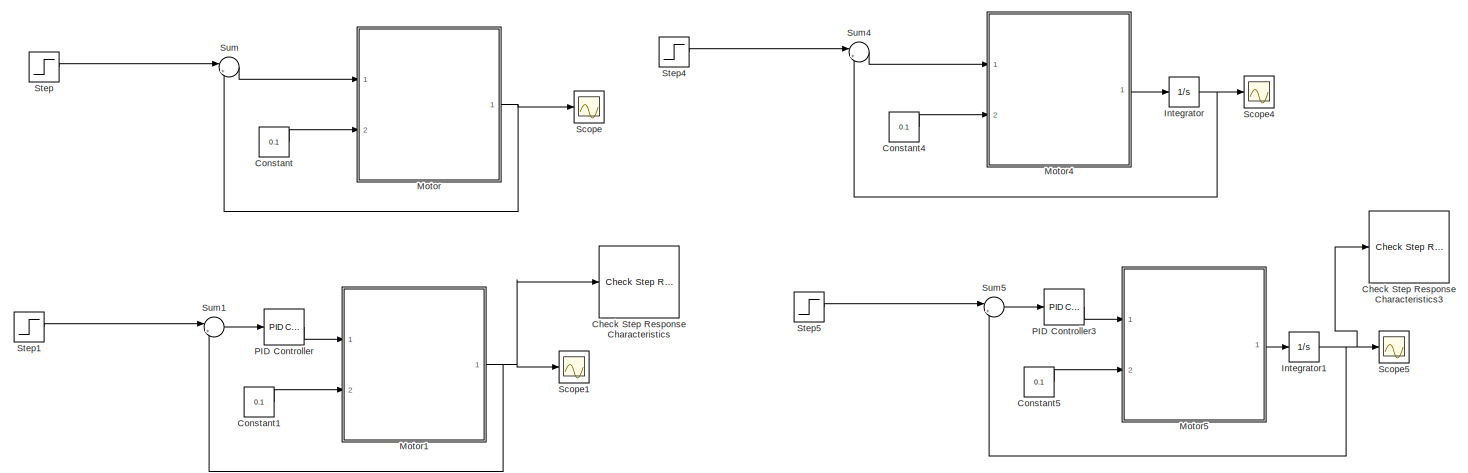
[diagram: root canvas - part 1/3, full width, top band]
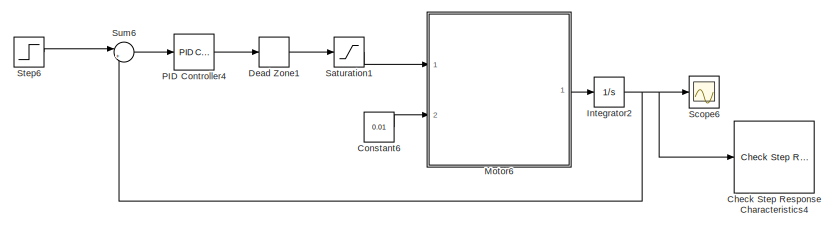
[diagram: root canvas - part 2/3, middle right region]
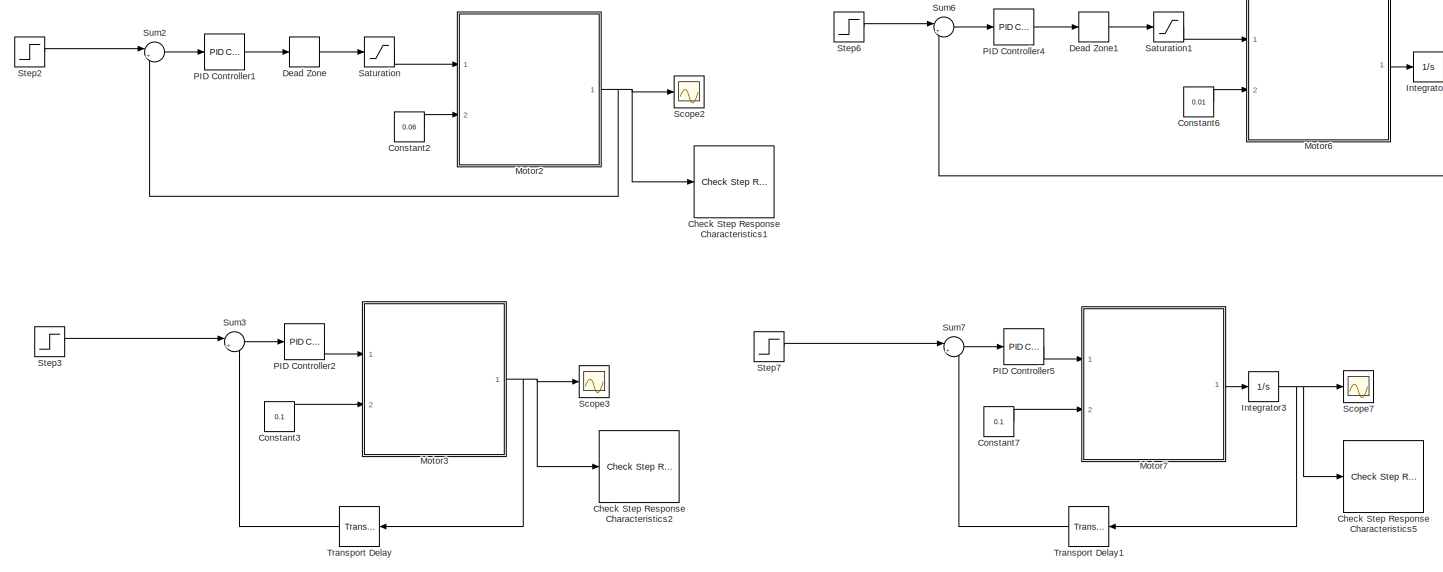
[diagram: root canvas - part 3/3, full width, bottom band]
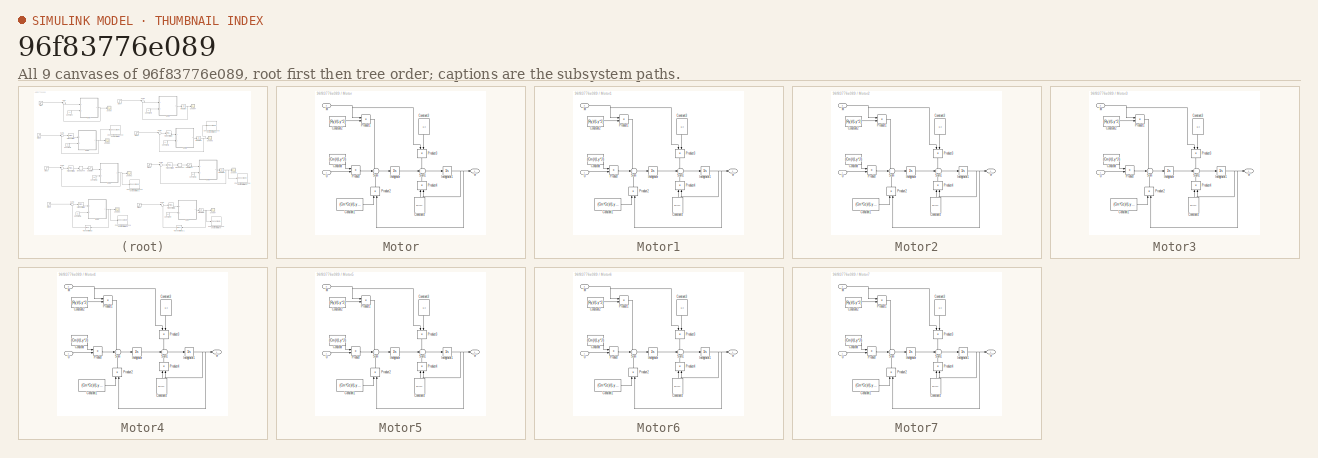
[diagram: thumbnail index - all 9 canvases of the model, root first then tree order]
MODEL slx_96f83776e089
KIND model
CONFIG AbsTol = auto
CONFIG EnableMultiTasking = off
CONFIG FixedStep = auto
CONFIG MaxStep = auto
CONFIG MinStep = auto
CONFIG RelTol = 1e-5
CONFIG SampleTimeConstraint = Unconstrained
CONFIG SolverName = ode23
CONFIG StartTime = 0.0
CONFIG StopTime = 1
BLOCK [Reference] Check Step Response Characteristics  REF=checkpacklib/Check Step Response 
Characteristics
  Commented = on
  InstantiateOnLoad = on
  Ports = [1]
  SourceBlock = checkpacklib/Check Step Response \nCharacteristics
  SourceProductBaseCode = CT,ID,MT,SO
  SourceType = Checks_StepResponse
BLOCK [Reference] Check Step Response Characteristics1  REF=checkpacklib/Check Step Response 
Characteristics
  Commented = on
  InstantiateOnLoad = on
  Ports = [1]
  SourceBlock = checkpacklib/Check Step Response \nCharacteristics
  SourceProductBaseCode = CT,ID,MT,SO
  SourceType = Checks_StepResponse
BLOCK [Reference] Check Step Response Characteristics2  REF=checkpacklib/Check Step Response 
Characteristics
  Commented = on
  InstantiateOnLoad = on
  Ports = [1]
  SourceBlock = checkpacklib/Check Step Response \nCharacteristics
  SourceProductBaseCode = CT,ID,MT,SO
  SourceType = Checks_StepResponse
BLOCK [Reference] Check Step Response Characteristics3  REF=checkpacklib/Check Step Response 
Characteristics
  InstantiateOnLoad = on
  Ports = [1]
  SourceBlock = checkpacklib/Check Step Response \nCharacteristics
  SourceProductBaseCode = CT,ID,MT,SO
  SourceType = Checks_StepResponse
BLOCK [Reference] Check Step Response Characteristics4  REF=checkpacklib/Check Step Response 
Characteristics
  Commented = on
  InstantiateOnLoad = on
  Ports = [1]
  SourceBlock = checkpacklib/Check Step Response \nCharacteristics
  SourceProductBaseCode = CT,ID,MT,SO
  SourceType = Checks_StepResponse
BLOCK [Reference] Check Step Response Characteristics5  REF=checkpacklib/Check Step Response 
Characteristics
  Commented = on
  InstantiateOnLoad = on
  Ports = [1]
  SourceBlock = checkpacklib/Check Step Response \nCharacteristics
  SourceProductBaseCode = CT,ID,MT,SO
  SourceType = Checks_StepResponse
BLOCK [Constant] Constant
  Commented = on
  Value = 0.1
BLOCK [Constant] Constant1
  Commented = on
  Value = 0.1
BLOCK [Constant] Constant2
  Commented = on
  Value = 0.06
BLOCK [Constant] Constant3
  Commented = on
  Value = 0.1
BLOCK [Constant] Constant4
  Commented = on
  Value = 0.1
BLOCK [Constant] Constant5
  Value = 0.1
BLOCK [Constant] Constant6
  Commented = on
  Value = 0.01
BLOCK [Constant] Constant7
  Commented = on
  Value = 0.1
BLOCK [DeadZone] Dead Zone
  Commented = on
  LowerValue = -0.8
  UpperValue = 0.8
BLOCK [DeadZone] Dead Zone1
  Commented = on
  LowerValue = -0.8
  UpperValue = 0.8
BLOCK [Integrator] Integrator
  Commented = on
  Ports = [1, 1]
BLOCK [Integrator] Integrator1
  Ports = [1, 1]
BLOCK [Integrator] Integrator2
  Commented = on
  Ports = [1, 1]
BLOCK [Integrator] Integrator3
  Commented = on
  Ports = [1, 1]
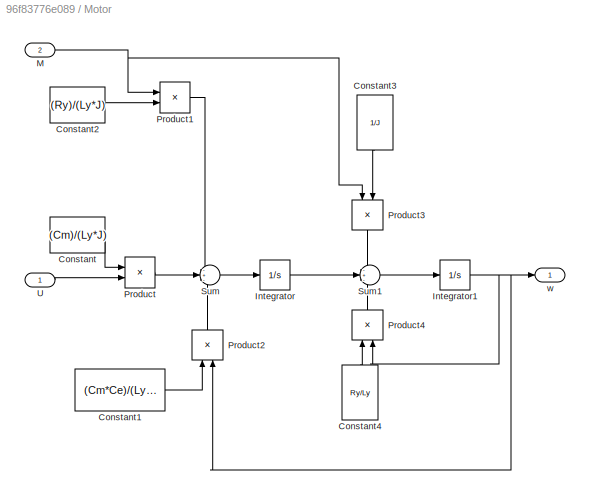
BLOCK [SubSystem] Motor
  Commented = on
  Ports = [2, 1]
  RequestExecContextInheritance = off
BLOCK [Constant] Motor/Constant
  Value = (Cm)/(Ly*J)
BLOCK [Constant] Motor/Constant1
  Value = (Cm*Ce)/(Ly*J)
BLOCK [Constant] Motor/Constant2
  Value = (Ry)/(Ly*J)
BLOCK [Constant] Motor/Constant3
  NameLocation = left
  Value = 1/J
BLOCK [Constant] Motor/Constant4
  NameLocation = right
  Value = Ry/Ly
BLOCK [Integrator] Motor/Integrator
  Ports = [1, 1]
BLOCK [Integrator] Motor/Integrator1
  Ports = [1, 1]
BLOCK [Inport] Motor/M
  Port = 2
BLOCK [Product] Motor/Product
  Ports = [2, 1]
BLOCK [Product] Motor/Product1
  Ports = [2, 1]
BLOCK [Product] Motor/Product2
  NameLocation = right
  Ports = [2, 1]
BLOCK [Product] Motor/Product3
  NameLocation = left
  Ports = [2, 1]
BLOCK [Product] Motor/Product4
  NameLocation = right
  Ports = [2, 1]
BLOCK [Sum] Motor/Sum
  Inputs = -+-
  Ports = [3, 1]
BLOCK [Sum] Motor/Sum1
  Inputs = -+-
  Ports = [3, 1]
BLOCK [Inport] Motor/U
BLOCK [Outport] Motor/w
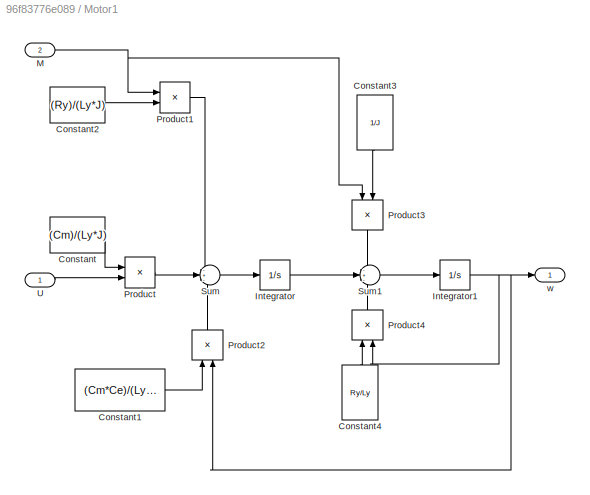
BLOCK [SubSystem] Motor1
  Commented = on
  Ports = [2, 1]
  RequestExecContextInheritance = off
BLOCK [Constant] Motor1/Constant
  Value = (Cm)/(Ly*J)
BLOCK [Constant] Motor1/Constant1
  Value = (Cm*Ce)/(Ly*J)
BLOCK [Constant] Motor1/Constant2
  Value = (Ry)/(Ly*J)
BLOCK [Constant] Motor1/Constant3
  NameLocation = left
  Value = 1/J
BLOCK [Constant] Motor1/Constant4
  NameLocation = right
  Value = Ry/Ly
BLOCK [Integrator] Motor1/Integrator
  Ports = [1, 1]
BLOCK [Integrator] Motor1/Integrator1
  Ports = [1, 1]
BLOCK [Inport] Motor1/M
  Port = 2
BLOCK [Product] Motor1/Product
  Ports = [2, 1]
BLOCK [Product] Motor1/Product1
  Ports = [2, 1]
BLOCK [Product] Motor1/Product2
  NameLocation = right
  Ports = [2, 1]
BLOCK [Product] Motor1/Product3
  NameLocation = left
  Ports = [2, 1]
BLOCK [Product] Motor1/Product4
  NameLocation = right
  Ports = [2, 1]
BLOCK [Sum] Motor1/Sum
  Inputs = -+-
  Ports = [3, 1]
BLOCK [Sum] Motor1/Sum1
  Inputs = -+-
  Ports = [3, 1]
BLOCK [Inport] Motor1/U
BLOCK [Outport] Motor1/w
BLOCK [SubSystem] Motor2
  Commented = on
  Ports = [2, 1]
  RequestExecContextInheritance = off
BLOCK [Constant] Motor2/Constant
  Value = (Cm)/(Ly*J)
BLOCK [Constant] Motor2/Constant1
  Value = (Cm*Ce)/(Ly*J)
BLOCK [Constant] Motor2/Constant2
  Value = (Ry)/(Ly*J)
BLOCK [Constant] Motor2/Constant3
  NameLocation = left
  Value = 1/J
BLOCK [Constant] Motor2/Constant4
  NameLocation = right
  Value = Ry/Ly
BLOCK [Integrator] Motor2/Integrator
  Ports = [1, 1]
BLOCK [Integrator] Motor2/Integrator1
  Ports = [1, 1]
BLOCK [Inport] Motor2/M
  Port = 2
BLOCK [Product] Motor2/Product
  Ports = [2, 1]
BLOCK [Product] Motor2/Product1
  Ports = [2, 1]
BLOCK [Product] Motor2/Product2
  NameLocation = right
  Ports = [2, 1]
BLOCK [Product] Motor2/Product3
  NameLocation = left
  Ports = [2, 1]
BLOCK [Product] Motor2/Product4
  NameLocation = right
  Ports = [2, 1]
BLOCK [Sum] Motor2/Sum
  Inputs = -+-
  Ports = [3, 1]
BLOCK [Sum] Motor2/Sum1
  Inputs = -+-
  Ports = [3, 1]
BLOCK [Inport] Motor2/U
BLOCK [Outport] Motor2/w
BLOCK [SubSystem] Motor3
  Commented = on
  Ports = [2, 1]
  RequestExecContextInheritance = off
BLOCK [Constant] Motor3/Constant
  Value = (Cm)/(Ly*J)
BLOCK [Constant] Motor3/Constant1
  Value = (Cm*Ce)/(Ly*J)
BLOCK [Constant] Motor3/Constant2
  Value = (Ry)/(Ly*J)
BLOCK [Constant] Motor3/Constant3
  NameLocation = left
  Value = 1/J
BLOCK [Constant] Motor3/Constant4
  NameLocation = right
  Value = Ry/Ly
BLOCK [Integrator] Motor3/Integrator
  Ports = [1, 1]
BLOCK [Integrator] Motor3/Integrator1
  Ports = [1, 1]
BLOCK [Inport] Motor3/M
  Port = 2
BLOCK [Product] Motor3/Product
  Ports = [2, 1]
BLOCK [Product] Motor3/Product1
  Ports = [2, 1]
BLOCK [Product] Motor3/Product2
  NameLocation = right
  Ports = [2, 1]
BLOCK [Product] Motor3/Product3
  NameLocation = left
  Ports = [2, 1]
BLOCK [Product] Motor3/Product4
  NameLocation = right
  Ports = [2, 1]
BLOCK [Sum] Motor3/Sum
  Inputs = -+-
  Ports = [3, 1]
BLOCK [Sum] Motor3/Sum1
  Inputs = -+-
  Ports = [3, 1]
BLOCK [Inport] Motor3/U
BLOCK [Outport] Motor3/w
BLOCK [SubSystem] Motor4
  Commented = on
  Ports = [2, 1]
  RequestExecContextInheritance = off
BLOCK [Constant] Motor4/Constant
  Value = (Cm)/(Ly*J)
BLOCK [Constant] Motor4/Constant1
  Value = (Cm*Ce)/(Ly*J)
BLOCK [Constant] Motor4/Constant2
  Value = (Ry)/(Ly*J)
BLOCK [Constant] Motor4/Constant3
  NameLocation = left
  Value = 1/J
BLOCK [Constant] Motor4/Constant4
  NameLocation = right
  Value = Ry/Ly
BLOCK [Integrator] Motor4/Integrator
  Ports = [1, 1]
BLOCK [Integrator] Motor4/Integrator1
  Ports = [1, 1]
BLOCK [Inport] Motor4/M
  Port = 2
BLOCK [Product] Motor4/Product
  Ports = [2, 1]
BLOCK [Product] Motor4/Product1
  Ports = [2, 1]
BLOCK [Product] Motor4/Product2
  NameLocation = right
  Ports = [2, 1]
BLOCK [Product] Motor4/Product3
  NameLocation = left
  Ports = [2, 1]
BLOCK [Product] Motor4/Product4
  NameLocation = right
  Ports = [2, 1]
BLOCK [Sum] Motor4/Sum
  Inputs = -+-
  Ports = [3, 1]
BLOCK [Sum] Motor4/Sum1
  Inputs = -+-
  Ports = [3, 1]
BLOCK [Inport] Motor4/U
BLOCK [Outport] Motor4/w
BLOCK [SubSystem] Motor5
  Ports = [2, 1]
  RequestExecContextInheritance = off
BLOCK [Constant] Motor5/Constant
  Value = (Cm)/(Ly*J)
BLOCK [Constant] Motor5/Constant1
  Value = (Cm*Ce)/(Ly*J)
BLOCK [Constant] Motor5/Constant2
  Value = (Ry)/(Ly*J)
BLOCK [Constant] Motor5/Constant3
  NameLocation = left
  Value = 1/J
BLOCK [Constant] Motor5/Constant4
  NameLocation = right
  Value = Ry/Ly
BLOCK [Integrator] Motor5/Integrator
  Ports = [1, 1]
BLOCK [Integrator] Motor5/Integrator1
  Ports = [1, 1]
BLOCK [Inport] Motor5/M
  Port = 2
BLOCK [Product] Motor5/Product
  Ports = [2, 1]
BLOCK [Product] Motor5/Product1
  Ports = [2, 1]
BLOCK [Product] Motor5/Product2
  NameLocation = right
  Ports = [2, 1]
BLOCK [Product] Motor5/Product3
  NameLocation = left
  Ports = [2, 1]
BLOCK [Product] Motor5/Product4
  NameLocation = right
  Ports = [2, 1]
BLOCK [Sum] Motor5/Sum
  Inputs = -+-
  Ports = [3, 1]
BLOCK [Sum] Motor5/Sum1
  Inputs = -+-
  Ports = [3, 1]
BLOCK [Inport] Motor5/U
BLOCK [Outport] Motor5/w
BLOCK [SubSystem] Motor6
  Commented = on
  Ports = [2, 1]
  RequestExecContextInheritance = off
BLOCK [Constant] Motor6/Constant
  Value = (Cm)/(Ly*J)
BLOCK [Constant] Motor6/Constant1
  Value = (Cm*Ce)/(Ly*J)
BLOCK [Constant] Motor6/Constant2
  Value = (Ry)/(Ly*J)
BLOCK [Constant] Motor6/Constant3
  NameLocation = left
  Value = 1/J
BLOCK [Constant] Motor6/Constant4
  NameLocation = right
  Value = Ry/Ly
BLOCK [Integrator] Motor6/Integrator
  Ports = [1, 1]
BLOCK [Integrator] Motor6/Integrator1
  Ports = [1, 1]
BLOCK [Inport] Motor6/M
  Port = 2
BLOCK [Product] Motor6/Product
  Ports = [2, 1]
BLOCK [Product] Motor6/Product1
  Ports = [2, 1]
BLOCK [Product] Motor6/Product2
  NameLocation = right
  Ports = [2, 1]
BLOCK [Product] Motor6/Product3
  NameLocation = left
  Ports = [2, 1]
BLOCK [Product] Motor6/Product4
  NameLocation = right
  Ports = [2, 1]
BLOCK [Sum] Motor6/Sum
  Inputs = -+-
  Ports = [3, 1]
BLOCK [Sum] Motor6/Sum1
  Inputs = -+-
  Ports = [3, 1]
BLOCK [Inport] Motor6/U
BLOCK [Outport] Motor6/w
BLOCK [SubSystem] Motor7
  Commented = on
  Ports = [2, 1]
  RequestExecContextInheritance = off
BLOCK [Constant] Motor7/Constant
  Value = (Cm)/(Ly*J)
BLOCK [Constant] Motor7/Constant1
  Value = (Cm*Ce)/(Ly*J)
BLOCK [Constant] Motor7/Constant2
  Value = (Ry)/(Ly*J)
BLOCK [Constant] Motor7/Constant3
  NameLocation = left
  Value = 1/J
BLOCK [Constant] Motor7/Constant4
  NameLocation = right
  Value = Ry/Ly
BLOCK [Integrator] Motor7/Integrator
  Ports = [1, 1]
BLOCK [Integrator] Motor7/Integrator1
  Ports = [1, 1]
BLOCK [Inport] Motor7/M
  Port = 2
BLOCK [Product] Motor7/Product
  Ports = [2, 1]
BLOCK [Product] Motor7/Product1
  Ports = [2, 1]
BLOCK [Product] Motor7/Product2
  NameLocation = right
  Ports = [2, 1]
BLOCK [Product] Motor7/Product3
  NameLocation = left
  Ports = [2, 1]
BLOCK [Product] Motor7/Product4
  NameLocation = right
  Ports = [2, 1]
BLOCK [Sum] Motor7/Sum
  Inputs = -+-
  Ports = [3, 1]
BLOCK [Sum] Motor7/Sum1
  Inputs = -+-
  Ports = [3, 1]
BLOCK [Inport] Motor7/U
BLOCK [Outport] Motor7/w
BLOCK [Reference] PID Controller  REF=pid_lib/PID Controller
  Commented = on
  Ports = [1, 1]
  SourceBlock = pid_lib/PID Controller
  SourceProductBaseCode = SL
  SourceType = PID 1dof
BLOCK [Reference] PID Controller1  REF=pid_lib/PID Controller
  Commented = on
  Ports = [1, 1]
  SourceBlock = pid_lib/PID Controller
  SourceProductBaseCode = SL
  SourceType = PID 1dof
BLOCK [Reference] PID Controller2  REF=pid_lib/PID Controller
  Commented = on
  Ports = [1, 1]
  SourceBlock = pid_lib/PID Controller
  SourceProductBaseCode = SL
  SourceType = PID 1dof
BLOCK [Reference] PID Controller3  REF=pid_lib/PID Controller
  Ports = [1, 1]
  SourceBlock = pid_lib/PID Controller
  SourceProductBaseCode = SL
  SourceType = PID 1dof
BLOCK [Reference] PID Controller4  REF=pid_lib/PID Controller
  Commented = on
  Ports = [1, 1]
  SourceBlock = pid_lib/PID Controller
  SourceProductBaseCode = SL
  SourceType = PID 1dof
BLOCK [Reference] PID Controller5  REF=pid_lib/PID Controller
  Commented = on
  Ports = [1, 1]
  SourceBlock = pid_lib/PID Controller
  SourceProductBaseCode = SL
  SourceType = PID 1dof
BLOCK [Saturate] Saturation
  Commented = on
  LowerLimit = -0.15
  UpperLimit = 0.15
BLOCK [Saturate] Saturation1
  Commented = on
  LowerLimit = -0.15
  UpperLimit = 0.15
BLOCK [Scope] Scope
  Commented = on
  Floating = off
  NumInputPorts = 1
  Ports = [1]
  ScopeSpecificationString = Simulink.scopes.TimeScopeBlockCfg('CurrentConfiguration', extmgr.ConfigurationSet(extmgr.Configuration('Core','General UI',true),extmgr.Configuration('Core','Source UI',true),extmgr.Configuration('Sources','WiredSimulink',true),extmgr.Configuration('Visuals','Time Domain',true,'SerializedDisplays',{struct('MinYLimReal','-0.13488','MaxYLimReal','0.93478','YLabelReal','','MinYLimMag','0.00000','MaxY...<+1325ch>
BLOCK [Scope] Scope1
  Commented = on
  Floating = off
  NumInputPorts = 1
  Ports = [1]
  ScopeSpecificationString = Simulink.scopes.TimeScopeBlockCfg('CurrentConfiguration', extmgr.ConfigurationSet(extmgr.Configuration('Core','General UI',true),extmgr.Configuration('Core','Source UI',true),extmgr.Configuration('Sources','WiredSimulink',true,'DataLoggingVariableName','ScopeData1'),extmgr.Configuration('Visuals','Time Domain',true,'SerializedDisplays',{struct('MinYLimReal','-0.23126','MaxYLimReal','1.97349','YLab...<+1365ch>
BLOCK [Scope] Scope2
  Commented = on
  Floating = off
  NumInputPorts = 1
  Ports = [1]
  ScopeSpecificationString = Simulink.scopes.TimeScopeBlockCfg('CurrentConfiguration', extmgr.ConfigurationSet(extmgr.Configuration('Core','General UI',true,'FigureColor',[1 1 1]),extmgr.Configuration('Core','Source UI',true),extmgr.Configuration('Sources','WiredSimulink',true,'DataLoggingVariableName','ScopeData1'),extmgr.Configuration('Visuals','Time Domain',true,'SerializedDisplays',{struct('MinYLimReal','-0.96154','MaxYLi...<+1540ch>
BLOCK [Scope] Scope3
  Commented = on
  Floating = off
  NumInputPorts = 1
  Ports = [1]
  ScopeSpecificationString = Simulink.scopes.TimeScopeBlockCfg('CurrentConfiguration', extmgr.ConfigurationSet(extmgr.Configuration('Core','General UI',true),extmgr.Configuration('Core','Source UI',true),extmgr.Configuration('Sources','WiredSimulink',true,'DataLoggingVariableName','ScopeData2'),extmgr.Configuration('Visuals','Time Domain',true,'SerializedDisplays',{struct('MinYLimReal','-17124.21441','MaxYLimReal','10142.5740...<+1450ch>
BLOCK [Scope] Scope4
  Commented = on
  Floating = off
  NumInputPorts = 1
  Ports = [1]
  ScopeSpecificationString = Simulink.scopes.TimeScopeBlockCfg('CurrentConfiguration', extmgr.ConfigurationSet(extmgr.Configuration('Core','General UI',true),extmgr.Configuration('Core','Source UI',true),extmgr.Configuration('Sources','WiredSimulink',true,'DataLoggingVariableName','ScopeData1'),extmgr.Configuration('Visuals','Time Domain',true,'SerializedDisplays',{struct('MinYLimReal','-0.13488','MaxYLimReal','0.93478','YLab...<+1364ch>
BLOCK [Scope] Scope5
  Floating = off
  NumInputPorts = 1
  Ports = [1]
  ScopeSpecificationString = Simulink.scopes.TimeScopeBlockCfg('CurrentConfiguration', extmgr.ConfigurationSet(extmgr.Configuration('Core','General UI',true,'FigureColor',[1 1 1]),extmgr.Configuration('Core','Source UI',true),extmgr.Configuration('Sources','WiredSimulink',true,'DataLoggingVariableName','ScopeData2'),extmgr.Configuration('Visuals','Time Domain',true,'SerializedDisplays',{struct('MinYLimReal','-0.12653','MaxYLi...<+1493ch>
BLOCK [Scope] Scope6
  Commented = on
  Floating = off
  NumInputPorts = 1
  Ports = [1]
  ScopeSpecificationString = Simulink.scopes.TimeScopeBlockCfg('CurrentConfiguration', extmgr.ConfigurationSet(extmgr.Configuration('Core','General UI',true,'FigureColor',[1 1 1]),extmgr.Configuration('Core','Source UI',true),extmgr.Configuration('Sources','WiredSimulink',true,'DataLoggingVariableName','ScopeData3'),extmgr.Configuration('Visuals','Time Domain',true,'SerializedDisplays',{struct('MinYLimReal','-0.05389','MaxYLi...<+1545ch>
BLOCK [Scope] Scope7
  Commented = on
  Floating = off
  NumInputPorts = 1
  Ports = [1]
  ScopeSpecificationString = Simulink.scopes.TimeScopeBlockCfg('CurrentConfiguration', extmgr.ConfigurationSet(extmgr.Configuration('Core','General UI',true,'FigureColor',[1 1 1]),extmgr.Configuration('Core','Source UI',true),extmgr.Configuration('Sources','WiredSimulink',true,'DataLoggingVariableName','ScopeData4'),extmgr.Configuration('Visuals','Time Domain',true,'SerializedDisplays',{struct('MinYLimReal','-0.16186','MaxYLi...<+1548ch>
BLOCK [Step] Step
  Commented = on
  SampleTime = 0
  Time = 0
BLOCK [Step] Step1
  Commented = on
  SampleTime = 0
  Time = 0
BLOCK [Step] Step2
  Commented = on
  SampleTime = 0
  Time = 0
BLOCK [Step] Step3
  Commented = on
  SampleTime = 0
  Time = 0
BLOCK [Step] Step4
  Commented = on
  SampleTime = 0
  Time = 0
BLOCK [Step] Step5
  SampleTime = 0
  Time = 0
BLOCK [Step] Step6
  Commented = on
  SampleTime = 0
  Time = 0
BLOCK [Step] Step7
  Commented = on
  SampleTime = 0
  Time = 0
BLOCK [Sum] Sum
  Commented = on
  Inputs = |+-
  Ports = [2, 1]
BLOCK [Sum] Sum1
  Commented = on
  Inputs = |+-
  Ports = [2, 1]
BLOCK [Sum] Sum2
  Commented = on
  Inputs = |+-
  Ports = [2, 1]
BLOCK [Sum] Sum3
  Commented = on
  Inputs = |+-
  Ports = [2, 1]
BLOCK [Sum] Sum4
  Commented = on
  Inputs = |+-
  Ports = [2, 1]
BLOCK [Sum] Sum5
  Inputs = |+-
  Ports = [2, 1]
BLOCK [Sum] Sum6
  Commented = on
  Inputs = |+-
  Ports = [2, 1]
BLOCK [Sum] Sum7
  Commented = on
  Inputs = |+-
  Ports = [2, 1]
BLOCK [TransportDelay] Transport Delay
  Commented = on
  DelayTime = 0.5
  NameLocation = top
  Ports = [1, 1]
BLOCK [TransportDelay] Transport Delay1
  Commented = on
  DelayTime = 0.5
  NameLocation = top
  Ports = [1, 1]
LINE Constant1:1 -> Motor1:2
LINE Constant2:1 -> Motor2:2
LINE Constant3:1 -> Motor3:2
LINE Constant4:1 -> Motor4:2
LINE Constant5:1 -> Motor5:2
LINE Constant6:1 -> Motor6:2
LINE Constant7:1 -> Motor7:2
LINE Constant:1 -> Motor:2
LINE Dead Zone1:1 -> Saturation1:1
LINE Dead Zone:1 -> Saturation:1
NET Integrator1:1 -> Check Step Response Characteristics3:1, Scope5:1, Sum5:2
NET Integrator2:1 -> Check Step Response Characteristics4:1, Scope6:1, Sum6:2
NET Integrator3:1 -> Check Step Response Characteristics5:1, Scope7:1, Transport Delay1:1
NET Integrator:1 -> Scope4:1, Sum4:2
LINE Motor/Constant1:1 -> Motor/Product2:1
LINE Motor/Constant2:1 -> Motor/Product1:2
LINE Motor/Constant3:1 -> Motor/Product3:2
LINE Motor/Constant4:1 -> Motor/Product4:1
LINE Motor/Constant:1 -> Motor/Product:1
NET Motor/Integrator1:1 -> Motor/Product2:2, Motor/Product4:2, Motor/w:1
LINE Motor/Integrator:1 -> Motor/Sum1:2
NET Motor/M:1 -> Motor/Product1:1, Motor/Product3:1
LINE Motor/Product1:1 -> Motor/Sum:1
LINE Motor/Product2:1 -> Motor/Sum:3
LINE Motor/Product3:1 -> Motor/Sum1:1
LINE Motor/Product4:1 -> Motor/Sum1:3
LINE Motor/Product:1 -> Motor/Sum:2
LINE Motor/Sum1:1 -> Motor/Integrator1:1
LINE Motor/Sum:1 -> Motor/Integrator:1
LINE Motor/U:1 -> Motor/Product:2
LINE Motor1/Constant1:1 -> Motor1/Product2:1
LINE Motor1/Constant2:1 -> Motor1/Product1:2
LINE Motor1/Constant3:1 -> Motor1/Product3:2
LINE Motor1/Constant4:1 -> Motor1/Product4:1
LINE Motor1/Constant:1 -> Motor1/Product:1
NET Motor1/Integrator1:1 -> Motor1/Product2:2, Motor1/Product4:2, Motor1/w:1
LINE Motor1/Integrator:1 -> Motor1/Sum1:2
NET Motor1/M:1 -> Motor1/Product1:1, Motor1/Product3:1
LINE Motor1/Product1:1 -> Motor1/Sum:1
LINE Motor1/Product2:1 -> Motor1/Sum:3
LINE Motor1/Product3:1 -> Motor1/Sum1:1
LINE Motor1/Product4:1 -> Motor1/Sum1:3
LINE Motor1/Product:1 -> Motor1/Sum:2
LINE Motor1/Sum1:1 -> Motor1/Integrator1:1
LINE Motor1/Sum:1 -> Motor1/Integrator:1
LINE Motor1/U:1 -> Motor1/Product:2
NET Motor1:1 -> Check Step Response Characteristics:1, Scope1:1, Sum1:2
LINE Motor2/Constant1:1 -> Motor2/Product2:1
LINE Motor2/Constant2:1 -> Motor2/Product1:2
LINE Motor2/Constant3:1 -> Motor2/Product3:2
LINE Motor2/Constant4:1 -> Motor2/Product4:1
LINE Motor2/Constant:1 -> Motor2/Product:1
NET Motor2/Integrator1:1 -> Motor2/Product2:2, Motor2/Product4:2, Motor2/w:1
LINE Motor2/Integrator:1 -> Motor2/Sum1:2
NET Motor2/M:1 -> Motor2/Product1:1, Motor2/Product3:1
LINE Motor2/Product1:1 -> Motor2/Sum:1
LINE Motor2/Product2:1 -> Motor2/Sum:3
LINE Motor2/Product3:1 -> Motor2/Sum1:1
LINE Motor2/Product4:1 -> Motor2/Sum1:3
LINE Motor2/Product:1 -> Motor2/Sum:2
LINE Motor2/Sum1:1 -> Motor2/Integrator1:1
LINE Motor2/Sum:1 -> Motor2/Integrator:1
LINE Motor2/U:1 -> Motor2/Product:2
NET Motor2:1 -> Check Step Response Characteristics1:1, Scope2:1, Sum2:2
LINE Motor3/Constant1:1 -> Motor3/Product2:1
LINE Motor3/Constant2:1 -> Motor3/Product1:2
LINE Motor3/Constant3:1 -> Motor3/Product3:2
LINE Motor3/Constant4:1 -> Motor3/Product4:1
LINE Motor3/Constant:1 -> Motor3/Product:1
NET Motor3/Integrator1:1 -> Motor3/Product2:2, Motor3/Product4:2, Motor3/w:1
LINE Motor3/Integrator:1 -> Motor3/Sum1:2
NET Motor3/M:1 -> Motor3/Product1:1, Motor3/Product3:1
LINE Motor3/Product1:1 -> Motor3/Sum:1
LINE Motor3/Product2:1 -> Motor3/Sum:3
LINE Motor3/Product3:1 -> Motor3/Sum1:1
LINE Motor3/Product4:1 -> Motor3/Sum1:3
LINE Motor3/Product:1 -> Motor3/Sum:2
LINE Motor3/Sum1:1 -> Motor3/Integrator1:1
LINE Motor3/Sum:1 -> Motor3/Integrator:1
LINE Motor3/U:1 -> Motor3/Product:2
NET Motor3:1 -> Check Step Response Characteristics2:1, Scope3:1, Transport Delay:1
LINE Motor4/Constant1:1 -> Motor4/Product2:1
LINE Motor4/Constant2:1 -> Motor4/Product1:2
LINE Motor4/Constant3:1 -> Motor4/Product3:2
LINE Motor4/Constant4:1 -> Motor4/Product4:1
LINE Motor4/Constant:1 -> Motor4/Product:1
NET Motor4/Integrator1:1 -> Motor4/Product2:2, Motor4/Product4:2, Motor4/w:1
LINE Motor4/Integrator:1 -> Motor4/Sum1:2
NET Motor4/M:1 -> Motor4/Product1:1, Motor4/Product3:1
LINE Motor4/Product1:1 -> Motor4/Sum:1
LINE Motor4/Product2:1 -> Motor4/Sum:3
LINE Motor4/Product3:1 -> Motor4/Sum1:1
LINE Motor4/Product4:1 -> Motor4/Sum1:3
LINE Motor4/Product:1 -> Motor4/Sum:2
LINE Motor4/Sum1:1 -> Motor4/Integrator1:1
LINE Motor4/Sum:1 -> Motor4/Integrator:1
LINE Motor4/U:1 -> Motor4/Product:2
LINE Motor4:1 -> Integrator:1
LINE Motor5/Constant1:1 -> Motor5/Product2:1
LINE Motor5/Constant2:1 -> Motor5/Product1:2
LINE Motor5/Constant3:1 -> Motor5/Product3:2
LINE Motor5/Constant4:1 -> Motor5/Product4:1
LINE Motor5/Constant:1 -> Motor5/Product:1
NET Motor5/Integrator1:1 -> Motor5/Product2:2, Motor5/Product4:2, Motor5/w:1
LINE Motor5/Integrator:1 -> Motor5/Sum1:2
NET Motor5/M:1 -> Motor5/Product1:1, Motor5/Product3:1
LINE Motor5/Product1:1 -> Motor5/Sum:1
LINE Motor5/Product2:1 -> Motor5/Sum:3
LINE Motor5/Product3:1 -> Motor5/Sum1:1
LINE Motor5/Product4:1 -> Motor5/Sum1:3
LINE Motor5/Product:1 -> Motor5/Sum:2
LINE Motor5/Sum1:1 -> Motor5/Integrator1:1
LINE Motor5/Sum:1 -> Motor5/Integrator:1
LINE Motor5/U:1 -> Motor5/Product:2
LINE Motor5:1 -> Integrator1:1
LINE Motor6/Constant1:1 -> Motor6/Product2:1
LINE Motor6/Constant2:1 -> Motor6/Product1:2
LINE Motor6/Constant3:1 -> Motor6/Product3:2
LINE Motor6/Constant4:1 -> Motor6/Product4:1
LINE Motor6/Constant:1 -> Motor6/Product:1
NET Motor6/Integrator1:1 -> Motor6/Product2:2, Motor6/Product4:2, Motor6/w:1
LINE Motor6/Integrator:1 -> Motor6/Sum1:2
NET Motor6/M:1 -> Motor6/Product1:1, Motor6/Product3:1
LINE Motor6/Product1:1 -> Motor6/Sum:1
LINE Motor6/Product2:1 -> Motor6/Sum:3
LINE Motor6/Product3:1 -> Motor6/Sum1:1
LINE Motor6/Product4:1 -> Motor6/Sum1:3
LINE Motor6/Product:1 -> Motor6/Sum:2
LINE Motor6/Sum1:1 -> Motor6/Integrator1:1
LINE Motor6/Sum:1 -> Motor6/Integrator:1
LINE Motor6/U:1 -> Motor6/Product:2
LINE Motor6:1 -> Integrator2:1
LINE Motor7/Constant1:1 -> Motor7/Product2:1
LINE Motor7/Constant2:1 -> Motor7/Product1:2
LINE Motor7/Constant3:1 -> Motor7/Product3:2
LINE Motor7/Constant4:1 -> Motor7/Product4:1
LINE Motor7/Constant:1 -> Motor7/Product:1
NET Motor7/Integrator1:1 -> Motor7/Product2:2, Motor7/Product4:2, Motor7/w:1
LINE Motor7/Integrator:1 -> Motor7/Sum1:2
NET Motor7/M:1 -> Motor7/Product1:1, Motor7/Product3:1
LINE Motor7/Product1:1 -> Motor7/Sum:1
LINE Motor7/Product2:1 -> Motor7/Sum:3
LINE Motor7/Product3:1 -> Motor7/Sum1:1
LINE Motor7/Product4:1 -> Motor7/Sum1:3
LINE Motor7/Product:1 -> Motor7/Sum:2
LINE Motor7/Sum1:1 -> Motor7/Integrator1:1
LINE Motor7/Sum:1 -> Motor7/Integrator:1
LINE Motor7/U:1 -> Motor7/Product:2
LINE Motor7:1 -> Integrator3:1
NET Motor:1 -> Scope:1, Sum:2
LINE PID Controller1:1 -> Dead Zone:1
LINE PID Controller2:1 -> Motor3:1
LINE PID Controller3:1 -> Motor5:1
LINE PID Controller4:1 -> Dead Zone1:1
LINE PID Controller5:1 -> Motor7:1
LINE PID Controller:1 -> Motor1:1
LINE Saturation1:1 -> Motor6:1
LINE Saturation:1 -> Motor2:1
LINE Step1:1 -> Sum1:1
LINE Step2:1 -> Sum2:1
LINE Step3:1 -> Sum3:1
LINE Step4:1 -> Sum4:1
LINE Step5:1 -> Sum5:1
LINE Step6:1 -> Sum6:1
LINE Step7:1 -> Sum7:1
LINE Step:1 -> Sum:1
LINE Sum1:1 -> PID Controller:1
LINE Sum2:1 -> PID Controller1:1
LINE Sum3:1 -> PID Controller2:1
LINE Sum4:1 -> Motor4:1
LINE Sum5:1 -> PID Controller3:1
LINE Sum6:1 -> PID Controller4:1
LINE Sum7:1 -> PID Controller5:1
LINE Sum:1 -> Motor:1
LINE Transport Delay1:1 -> Sum7:2
LINE Transport Delay:1 -> Sum3:2
note: NET lines group one-source signal fan-out (src -> all destinations, sorted); 1:1 wires keep LINE
